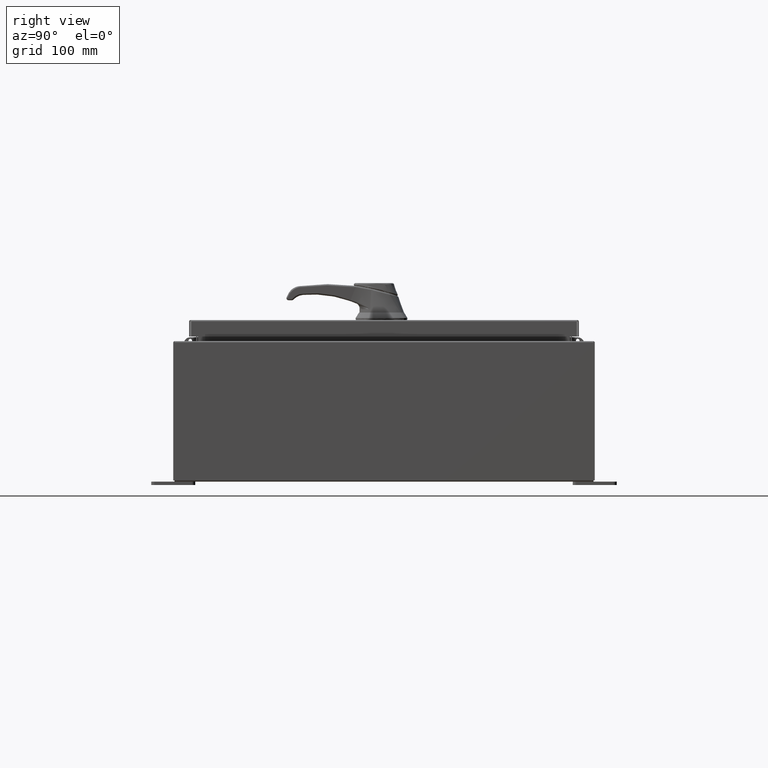
[diagram: clean part render]
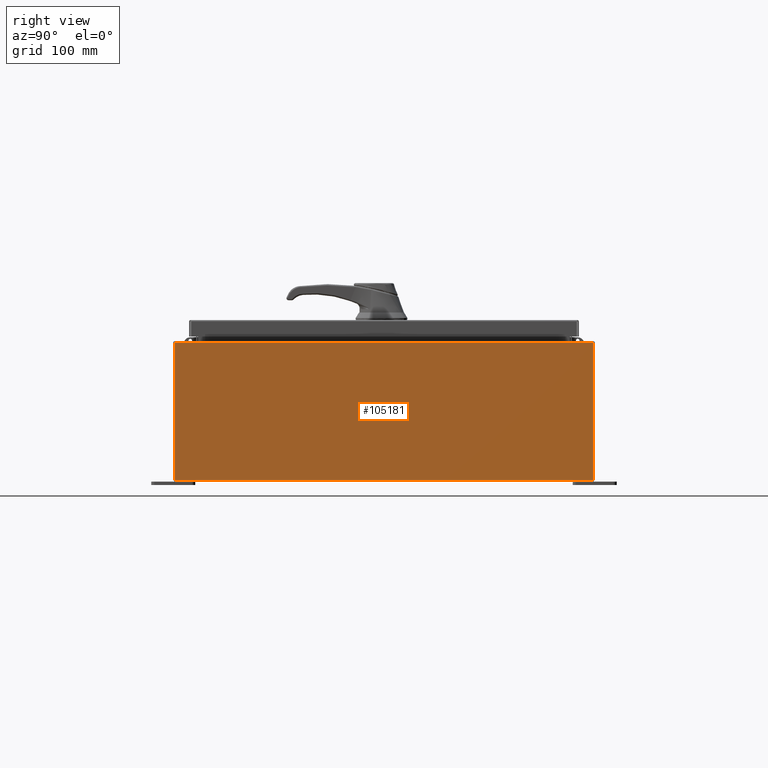
[diagram: same view with one face highlighted and labeled with its STEP entity id]
A machine part, right view. The second image highlights one B-rep face of the part: STEP entity #105181.
In plain terms, the highlighted planar face has unit normal (-1, 0, 0).
Its self-contained STEP definition (entity closure, byte-faithful):
#8249 = VECTOR ( 'NONE', #89166, 39.37007874015748100 ) ;
#8977 = EDGE_CURVE ( 'NONE', #23684, #45308, #90068, .T. ) ;
#10894 = FACE_OUTER_BOUND ( 'NONE', #21060, .T. ) ;
#13343 = LINE ( 'NONE', #91981, #97369 ) ;
#16444 = CARTESIAN_POINT ( 'NONE',  ( 15.00000000000000000, -11.92530000000000400, 0.01299999999999983600 ) ) ;
#17264 = CARTESIAN_POINT ( 'NONE',  ( 15.00000000000000000, 0.0000000000000000000, -5.403395625144962700E-014 ) ) ;
#19940 = ORIENTED_EDGE ( 'NONE', *, *, #108510, .T. ) ;
#21060 = EDGE_LOOP ( 'NONE', ( #28348, #58338, #65024, #19940 ) ) ;
#21459 = VERTEX_POINT ( 'NONE', #32670 ) ;
#23568 = VECTOR ( 'NONE', #64956, 39.37007874015748100 ) ;
#23684 = VERTEX_POINT ( 'NONE', #25810 ) ;
#25810 = CARTESIAN_POINT ( 'NONE',  ( 15.00000000000002800, -11.92530000000000400, 7.837599999999998300 ) ) ;
#26852 = AXIS2_PLACEMENT_3D ( 'NONE', #17264, #34674, #95254 ) ;
#28348 = ORIENTED_EDGE ( 'NONE', *, *, #59220, .T. ) ;
#30349 = LINE ( 'NONE', #67960, #73802 ) ;
#32670 = CARTESIAN_POINT ( 'NONE',  ( 15.00000000000000000, 11.92529999999999600, 0.01299999999999984700 ) ) ;
#34674 = DIRECTION ( 'NONE',  ( -1.000000000000000000, 0.0000000000000000000, 3.584876173029202900E-015 ) ) ;
#38020 = CARTESIAN_POINT ( 'NONE',  ( 15.00000000000000000, 11.92529999999999800, -5.403395625144962700E-014 ) ) ;
#45308 = VERTEX_POINT ( 'NONE', #16444 ) ;
#49800 = VERTEX_POINT ( 'NONE', #55659 ) ;
#54339 = EDGE_CURVE ( 'NONE', #21459, #45308, #30349, .T. ) ;
#55659 = CARTESIAN_POINT ( 'NONE',  ( 15.00000000000003200, 11.92529999999999600, 7.837599999999992100 ) ) ;
#56181 = CARTESIAN_POINT ( 'NONE',  ( 15.00000000000000000, -11.92530000000000400, -5.403395625144962700E-014 ) ) ;
#58338 = ORIENTED_EDGE ( 'NONE', *, *, #8977, .T. ) ;
#59220 = EDGE_CURVE ( 'NONE', #49800, #23684, #13343, .T. ) ;
#60433 = PLANE ( 'NONE',  #26852 ) ;
#64956 = DIRECTION ( 'NONE',  ( -3.584876173029202900E-015, 0.0000000000000000000, -1.000000000000000000 ) ) ;
#65024 = ORIENTED_EDGE ( 'NONE', *, *, #54339, .F. ) ;
#65886 = DIRECTION ( 'NONE',  ( -0.0000000000000000000, -1.000000000000000000, -0.0000000000000000000 ) ) ;
#67576 = DIRECTION ( 'NONE',  ( -0.0000000000000000000, -1.000000000000000000, -0.0000000000000000000 ) ) ;
#67960 = CARTESIAN_POINT ( 'NONE',  ( 15.00000000000000000, -11.92530000000000400, 0.01299999999999984700 ) ) ;
#71964 = LINE ( 'NONE', #38020, #8249 ) ;
#73802 = VECTOR ( 'NONE', #67576, 39.37007874015748100 ) ;
#89166 = DIRECTION ( 'NONE',  ( 3.584876173029202900E-015, 0.0000000000000000000, 1.000000000000000000 ) ) ;
#90068 = LINE ( 'NONE', #56181, #23568 ) ;
#91981 = CARTESIAN_POINT ( 'NONE',  ( 15.00000000000003200, 11.92529999999999800, 7.837599999999992100 ) ) ;
#95254 = DIRECTION ( 'NONE',  ( 3.584876173029202900E-015, 0.0000000000000000000, 1.000000000000000000 ) ) ;
#97369 = VECTOR ( 'NONE', #65886, 39.37007874015748100 ) ;
#105181 = ADVANCED_FACE ( 'NONE', ( #10894 ), #60433, .F. ) ;
#108510 = EDGE_CURVE ( 'NONE', #21459, #49800, #71964, .T. ) ;